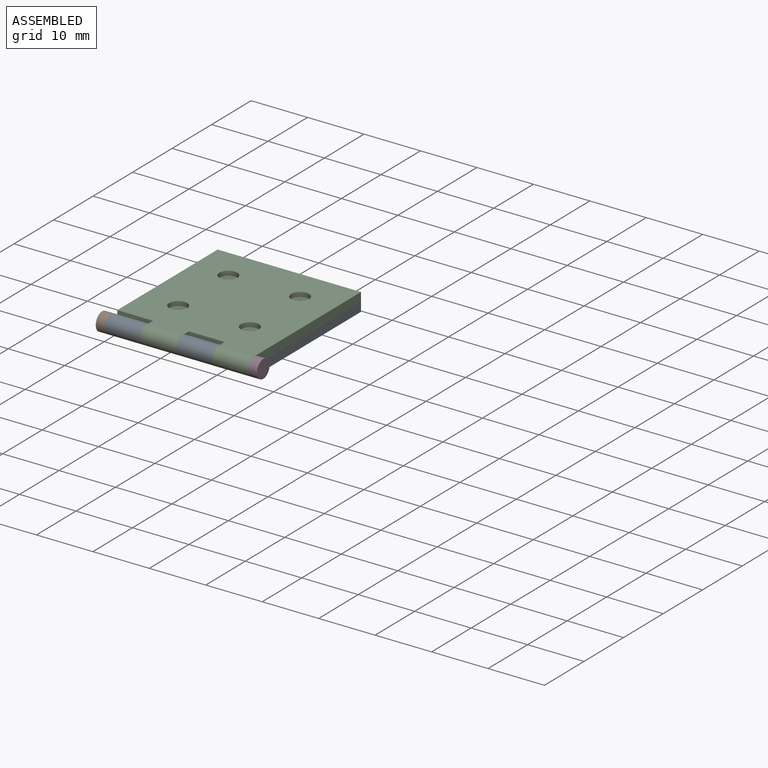
[diagram: assembled view]
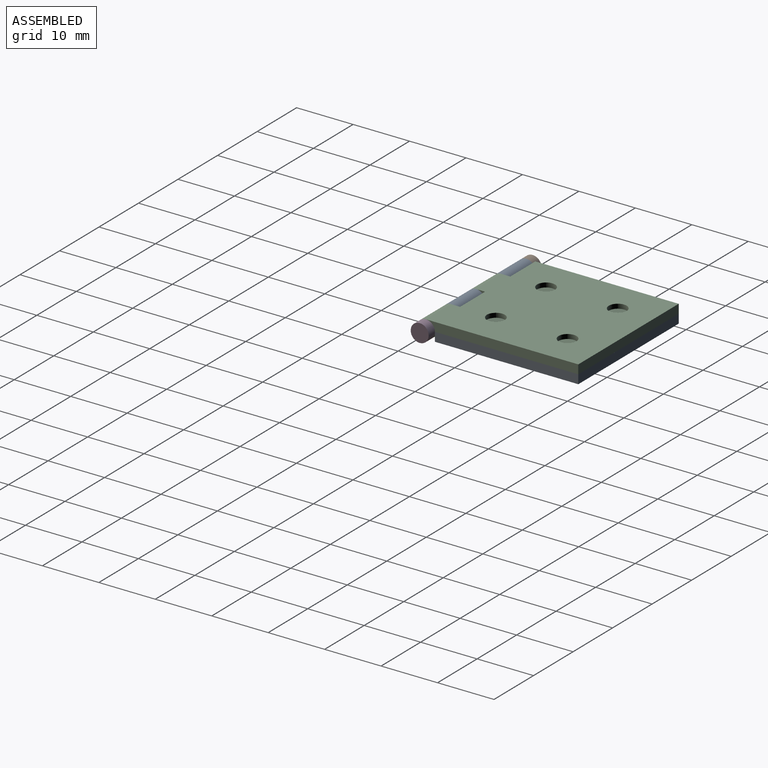
[diagram: assembled view, second angle]
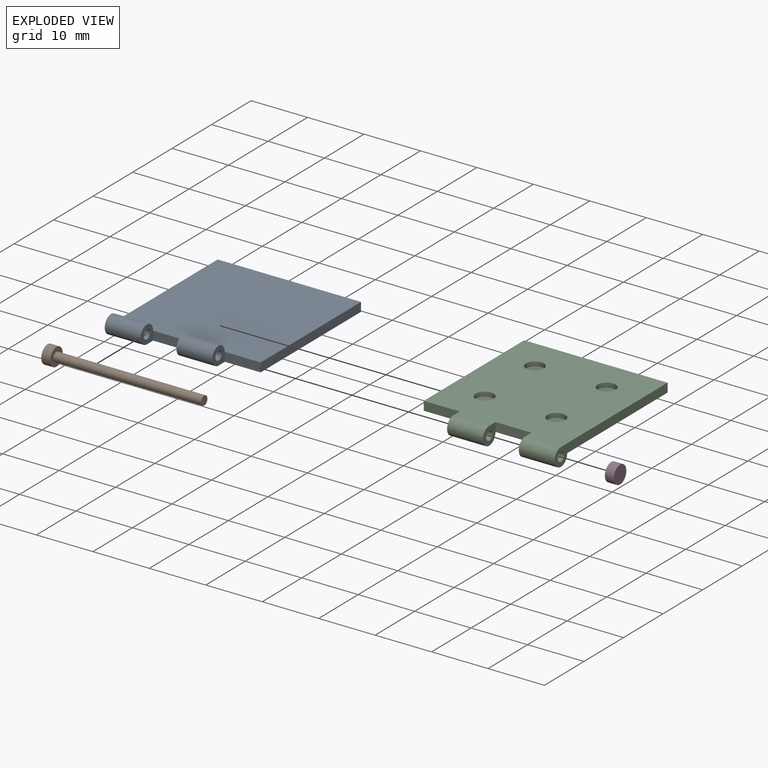
[diagram: exploded view]
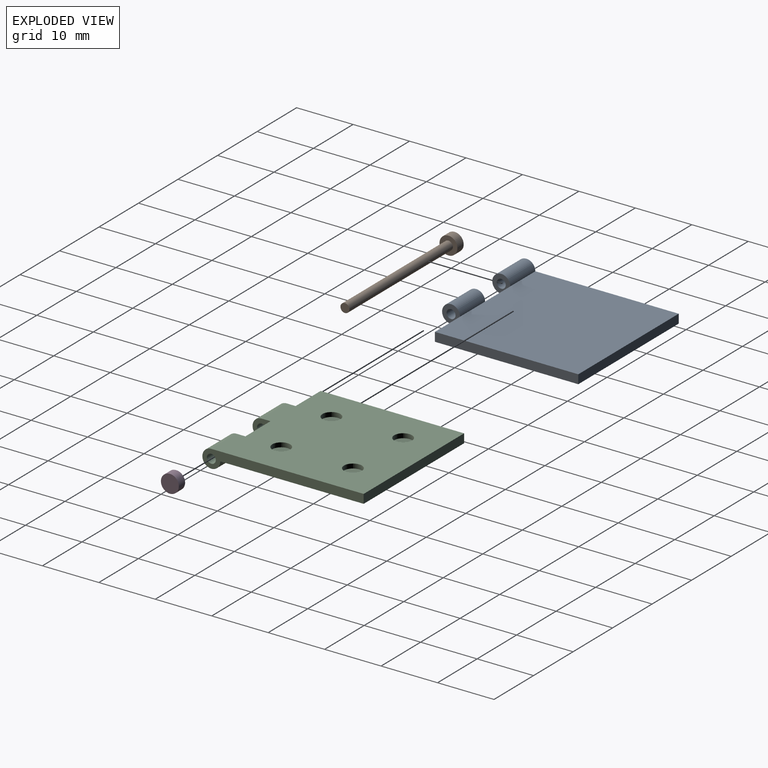
[diagram: exploded view, second angle]
ASSEMBLY  parts=4 mates=3
PART A: 22 faces, bbox 25.4x28.6x3.2 mm
  f0: plane 28.58x3.18mm, normal (-1,0,0), area 46.8mm2, adj f7,f8,f9,f11,f13
  f1: plane 3.18x3.18mm, normal (1,0,0), area 6.5mm2, adj f4,f9,f11,f13
  f2: plane 3.18x3.18mm, normal (1,0,0), area 6.5mm2, adj f5,f9,f10,f12
  f3: plane 3.18x3.18mm, normal (-1,0,0), area 6.5mm2, adj f4,f9,f10,f12
  f4: plane 6.35x1.59mm, normal (0,-1,0), area 10.1mm2, adj f1,f3,f8,f9
  f5: plane 6.35x1.59mm, normal (0,-1,0), area 10.1mm2, adj f2,f6,f8,f9
  f6: plane 25.4x1.59mm, normal (1,0,0), area 40.3mm2, adj f5,f7,f8,f9
  f7: plane 25.4x1.59mm, normal (0,1,0), area 40.3mm2, adj f0,f6,f8,f9
  f8: plane 25.4x25.4mm, normal (0,0,1), area 645.2mm2, adj f0,f4,f5,f6,f7,f10,f11
  f9: plane 26.99x25.4mm, normal (0,0,-1), area 633.7mm2, adj f0,f1,f2,f3,f4,f5,f6,f7
  f10: cylinder r=1.59mm len=6.35mm, axis (-1,0,0), area 47.5mm2, adj f2,f3,f8,f9
  f11: cylinder r=1.59mm len=6.35mm, axis (-1,0,0), area 47.5mm2, adj f0,f1,f8,f9
  f12: cylinder r=0.79mm len=6.35mm, axis (-1,0,0), area 31.7mm2, adj f2,f3
  f13: cylinder r=0.79mm len=6.35mm, axis (-1,0,0), area 31.7mm2, adj f0,f1
  f14: cylinder r=1.59mm len=3.18mm, axis (0,0,-1), area 7.9mm2, adj f9,f15
  f15: plane 3.18x3.18mm, normal (0,0,-1), area 7.9mm2, adj f14
  f16: cylinder r=1.59mm len=3.18mm, axis (0,0,-1), area 7.9mm2, adj f9,f17
  f17: plane 3.18x3.18mm, normal (0,0,-1), area 7.9mm2, adj f16
  f18: cylinder r=1.59mm len=3.18mm, axis (0,0,-1), area 7.9mm2, adj f9,f19
  f19: plane 3.18x3.18mm, normal (0,0,-1), area 7.9mm2, adj f18
  f20: cylinder r=1.59mm len=3.18mm, axis (0,0,-1), area 7.9mm2, adj f9,f21
  f21: plane 3.18x3.18mm, normal (0,0,-1), area 7.9mm2, adj f20
PART B: 5 faces, bbox 27.8x3.2x3.2 mm
  f0: cylinder r=0.79mm len=26.19mm, axis (-1,0,0), area 130.6mm2, adj f3,f4
  f1: cylinder r=1.59mm len=3.18mm, axis (1,0,0), area 15.8mm2, adj f2,f3
  f2: plane 3.18x3.18mm, normal (-1,0,0), area 7.9mm2, adj f1
  f3: plane 3.18x3.18mm, normal (1,0,0), area 5.9mm2, adj f0,f1
  f4: plane 1.59x1.59mm, normal (1,0,0), area 2mm2, adj f0
PART C: 22 faces, bbox 25.4x28.6x3.2 mm
  f0: plane 28.58x3.18mm, normal (1,0,0), area 46.8mm2, adj f4,f7,f9,f10,f12
  f1: plane 3.18x3.18mm, normal (-1,0,0), area 6.5mm2, adj f4,f6,f11,f13
  f2: plane 3.18x3.18mm, normal (1,0,0), area 6.5mm2, adj f4,f5,f11,f13
  f3: plane 3.18x3.18mm, normal (-1,0,0), area 6.5mm2, adj f4,f5,f10,f12
  f4: plane 26.99x25.4mm, normal (0,0,1), area 633.7mm2, adj f0,f1,f2,f3,f5,f6,f7,f8
  f5: plane 6.35x1.59mm, normal (0,-1,0), area 10.1mm2, adj f2,f3,f4,f9
  f6: plane 6.35x1.59mm, normal (0,-1,0), area 10.1mm2, adj f1,f4,f8,f9
  f7: plane 25.4x1.59mm, normal (0,1,0), area 40.3mm2, adj f0,f4,f8,f9
  f8: plane 25.4x1.59mm, normal (-1,0,0), area 40.3mm2, adj f4,f6,f7,f9
  f9: plane 25.4x25.4mm, normal (0,0,-1), area 645.2mm2, adj f0,f5,f6,f7,f8,f10,f11
  f10: cylinder r=1.59mm len=6.35mm, axis (1,0,0), area 47.5mm2, adj f0,f3,f4,f9
  f11: cylinder r=1.59mm len=6.35mm, axis (1,0,0), area 47.5mm2, adj f1,f2,f4,f9
  f12: cylinder r=0.79mm len=6.35mm, axis (1,0,0), area 31.7mm2, adj f0,f3
  f13: cylinder r=0.79mm len=6.35mm, axis (1,0,0), area 31.7mm2, adj f1,f2
  f14: cylinder r=1.59mm len=3.18mm, axis (0,0,1), area 7.9mm2, adj f4,f15
  f15: plane 3.18x3.18mm, normal (0,0,1), area 7.9mm2, adj f14
  f16: cylinder r=1.59mm len=3.18mm, axis (0,0,1), area 7.9mm2, adj f4,f17
  f17: plane 3.18x3.18mm, normal (0,0,1), area 7.9mm2, adj f16
  f18: cylinder r=1.59mm len=3.18mm, axis (0,0,1), area 7.9mm2, adj f4,f19
  f19: plane 3.18x3.18mm, normal (0,0,1), area 7.9mm2, adj f18
  f20: cylinder r=1.59mm len=3.18mm, axis (0,0,1), area 7.9mm2, adj f4,f21
  f21: plane 3.18x3.18mm, normal (0,0,1), area 7.9mm2, adj f20
PART D: 5 faces, bbox 1.6x3.2x3.2 mm
  f0: cylinder r=1.59mm len=3.18mm, axis (1,0,0), area 15.8mm2, adj f1,f2
  f1: plane 3.18x3.18mm, normal (-1,0,0), area 7.9mm2, adj f0
  f2: plane 3.18x3.18mm, normal (1,0,0), area 5.9mm2, adj f0,f3
  f3: cylinder r=0.79mm len=1.59mm, axis (1,0,0), area 4mm2, adj f2,f4
  f4: plane 1.59x1.59mm, normal (1,0,0), area 2mm2, adj f3
PLACE A t=(0,3.3,-8.15)mm
PLACE B t=(0,1.71,-6.56)mm
PLACE C t=(0,3.3,-6.56)mm
PLACE D rot(axis=(0,1,0),180deg) t=(25.4,1.71,-6.56)mm
MATE fastened D.f3 <-> B.f0  axis (-1,0,0) through (26.19,1.71,-6.56)mm
MATE revolute A.f10 <-> B.f0  axis (-1,0,0) through (12.7,1.71,-6.56)mm
MATE revolute C.f10 <-> B.f0  axis (1,0,0) through (12.7,1.71,-6.56)mm
